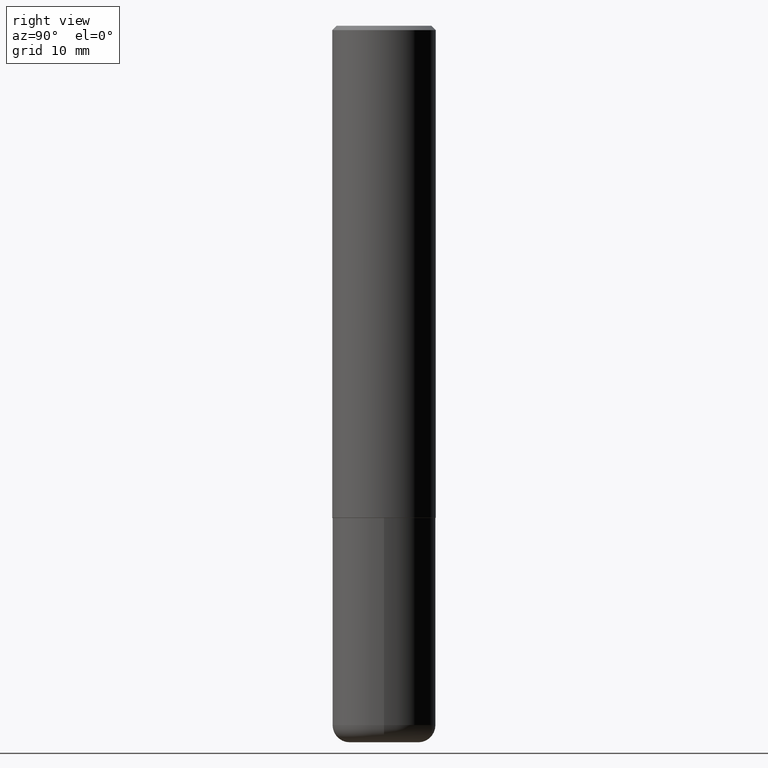
[diagram: clean part render]
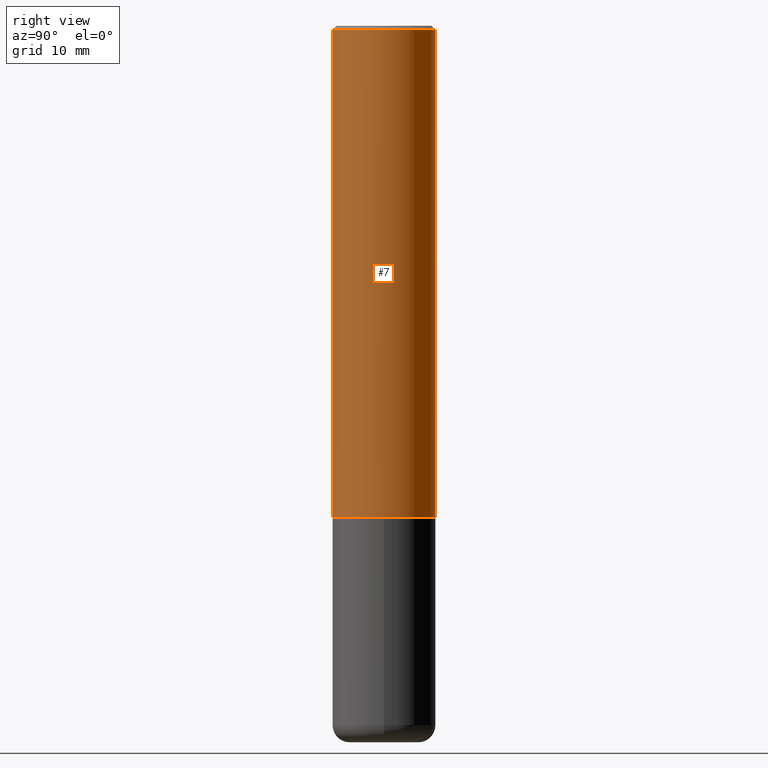
[diagram: same view with one face highlighted and labeled with its STEP entity id]
A machine part, right view. The second image highlights one B-rep face of the part: STEP entity #7.
In plain terms, the highlighted cylindrical surface (partial cylindrical patch) has radius 5.9995 mm, axis along (-0, 0, 1).
Its self-contained STEP definition (entity closure, byte-faithful):
#1 = CARTESIAN_POINT ( 'NONE',  ( -1.649375784469443080E-15, -0.2362000000000081257, -2.243099999999999206 ) ) ;
#7 = ADVANCED_FACE ( 'NONE', ( #27 ), #319, .T. ) ;
#27 = FACE_OUTER_BOUND ( 'NONE', #163, .T. ) ;
#28 = DIRECTION ( 'NONE',  ( -2.443198551934710321E-29, 3.494732472144603016E-15, 1.000000000000000000 ) ) ;
#42 = CARTESIAN_POINT ( 'NONE',  ( 5.480338671844748839E-29, -7.839034408267561952E-15, -2.243100000000000094 ) ) ;
#52 = ORIENTED_EDGE ( 'NONE', *, *, #249, .T. ) ;
#67 = CARTESIAN_POINT ( 'NONE',  ( -1.649375784469496920E-15, -0.2362000000000001321, 8.254558099205557624E-16 ) ) ;
#72 = DIRECTION ( 'NONE',  ( -2.443198551934710321E-29, 3.494732472144603410E-15, 1.000000000000000000 ) ) ;
#73 = EDGE_CURVE ( 'NONE', #368, #250, #338, .T. ) ;
#80 = CARTESIAN_POINT ( 'NONE',  ( 1.649375784469496525E-15, 0.2361999999999999378, -0.02000000000000091288 ) ) ;
#86 = VERTEX_POINT ( 'NONE', #1 ) ;
#110 = LINE ( 'NONE', #224, #152 ) ;
#129 = VERTEX_POINT ( 'NONE', #262 ) ;
#138 = EDGE_CURVE ( 'NONE', #86, #368, #395, .T. ) ;
#147 = AXIS2_PLACEMENT_3D ( 'NONE', #42, #271, #369 ) ;
#152 = VECTOR ( 'NONE', #28, 39.37007874015748143 ) ;
#156 = DIRECTION ( 'NONE',  ( -2.443198551934710321E-29, 3.494732472144603410E-15, 1.000000000000000000 ) ) ;
#163 = EDGE_LOOP ( 'NONE', ( #52, #350, #186, #275 ) ) ;
#186 = ORIENTED_EDGE ( 'NONE', *, *, #73, .F. ) ;
#209 = VECTOR ( 'NONE', #387, 39.37007874015748143 ) ;
#224 = CARTESIAN_POINT ( 'NONE',  ( 1.678301941865357380E-15, 0.2362000000000001321, -8.254558099205557624E-16 ) ) ;
#245 = CARTESIAN_POINT ( 'NONE',  ( -1.620449627073635079E-15, -0.2362000000000000766, -0.01999999999999926489 ) ) ;
#246 = AXIS2_PLACEMENT_3D ( 'NONE', #295, #72, #364 ) ;
#249 = EDGE_CURVE ( 'NONE', #86, #129, #370, .T. ) ;
#250 = VERTEX_POINT ( 'NONE', #80 ) ;
#262 = CARTESIAN_POINT ( 'NONE',  ( 1.678301941865385582E-15, 0.2361999999999924160, -2.243100000000000982 ) ) ;
#271 = DIRECTION ( 'NONE',  ( -2.443198551934710321E-29, 3.494732472144603410E-15, 1.000000000000000000 ) ) ;
#275 = ORIENTED_EDGE ( 'NONE', *, *, #138, .F. ) ;
#283 = DIRECTION ( 'NONE',  ( -6.982962677686265922E-15, -1.000000000000000000, 3.494732472144603410E-15 ) ) ;
#295 = CARTESIAN_POINT ( 'NONE',  ( 4.886397103869442398E-31, -6.989464944289237832E-17, -0.02000000000000009062 ) ) ;
#319 = CYLINDRICAL_SURFACE ( 'NONE', #330, 0.2362000000000001321 ) ;
#330 = AXIS2_PLACEMENT_3D ( 'NONE', #382, #156, #283 ) ;
#338 = CIRCLE ( 'NONE', #246, 0.2361999999999999933 ) ;
#350 = ORIENTED_EDGE ( 'NONE', *, *, #373, .T. ) ;
#364 = DIRECTION ( 'NONE',  ( -6.982962677686265922E-15, -1.000000000000000000, 3.487819265831411744E-15 ) ) ;
#368 = VERTEX_POINT ( 'NONE', #245 ) ;
#369 = DIRECTION ( 'NONE',  ( -6.982962677686265922E-15, -1.000000000000000000, 3.469747663417773058E-15 ) ) ;
#370 = CIRCLE ( 'NONE', #147, 0.2362000000000002709 ) ;
#373 = EDGE_CURVE ( 'NONE', #129, #250, #110, .T. ) ;
#382 = CARTESIAN_POINT ( 'NONE',  ( 0.000000000000000000, 0.000000000000000000, 0.000000000000000000 ) ) ;
#387 = DIRECTION ( 'NONE',  ( -2.443198551934710321E-29, 3.494732472144603016E-15, 1.000000000000000000 ) ) ;
#395 = LINE ( 'NONE', #67, #209 ) ;